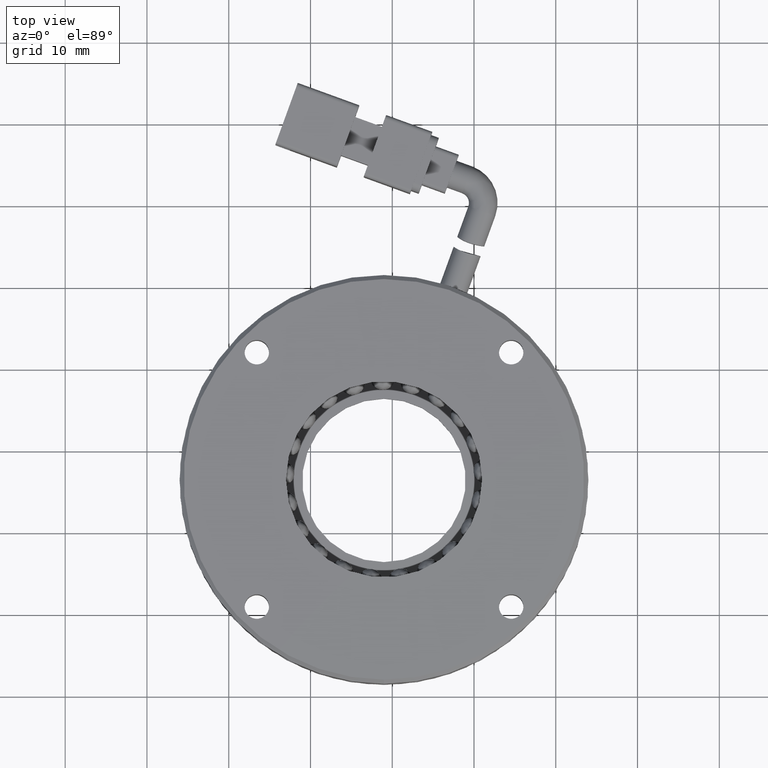
[diagram: clean part render]
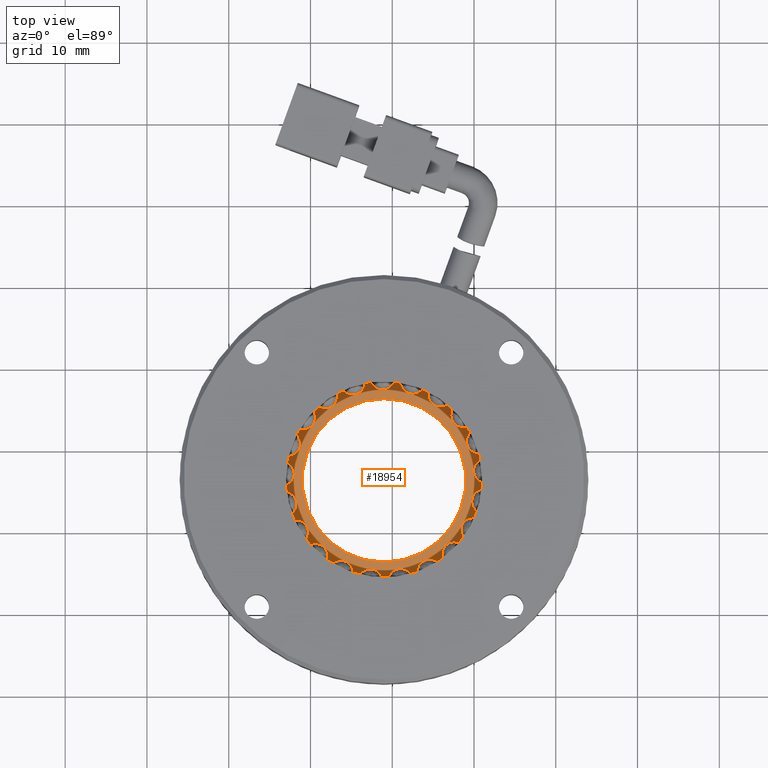
[diagram: same view with one face highlighted and labeled with its STEP entity id]
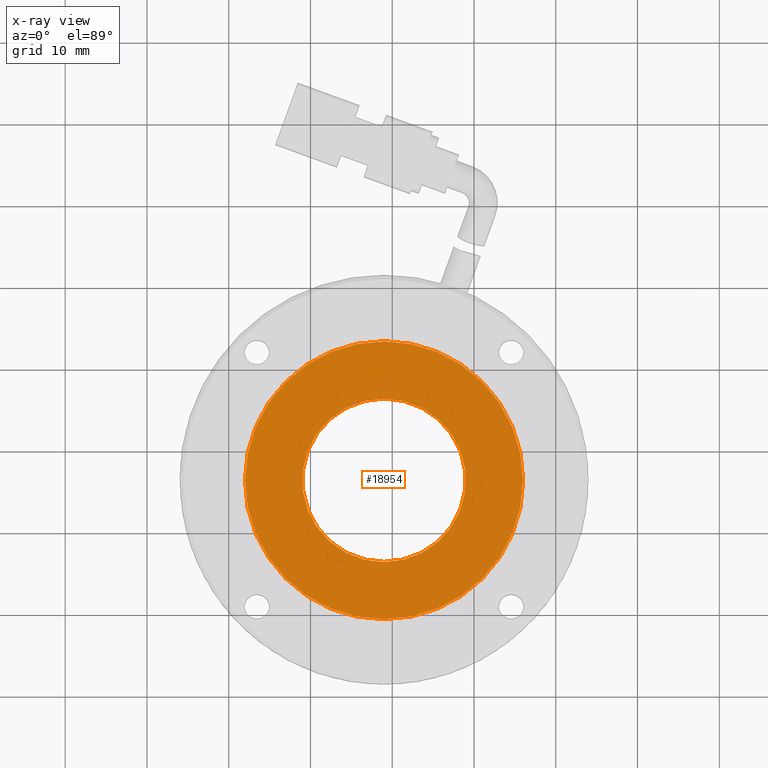
[diagram: x-ray of the same camera — body ghosted, the highlighted face saturated]
A machine part, top view. The second image highlights one B-rep face of the part: STEP entity #18954.
The next image is the same camera in x-ray: the body ghosted, the highlighted face saturated — about 0% of this face is hidden behind the body in this view.
In plain terms, the highlighted planar face has unit normal (-0, -0, -1).
Its self-contained STEP definition (entity closure, byte-faithful):
#968 = VERTEX_POINT ( 'NONE', #25221 ) ;
#1215 = FACE_BOUND ( 'NONE', #2160, .T. ) ;
#1675 = VERTEX_POINT ( 'NONE', #14541 ) ;
#1801 = VERTEX_POINT ( 'NONE', #25034 ) ;
#2160 = EDGE_LOOP ( 'NONE', ( #8732, #25264 ) ) ;
#2255 = EDGE_CURVE ( 'NONE', #5007, #1801, #4013, .T. ) ;
#3247 = EDGE_LOOP ( 'NONE', ( #10003, #19771 ) ) ;
#3366 = CARTESIAN_POINT ( 'NONE',  ( -121.0083944312394000, 6.460725025464729900, -3.499999999999940500 ) ) ;
#4013 = CIRCLE ( 'NONE', #13956, 10.00000000000000000 ) ;
#4231 = AXIS2_PLACEMENT_3D ( 'NONE', #3366, #17638, #5405 ) ;
#5007 = VERTEX_POINT ( 'NONE', #23747 ) ;
#5405 = DIRECTION ( 'NONE',  ( 0.0000000000000000000, -1.000000000000000000, 0.0000000000000000000 ) ) ;
#6024 = FACE_OUTER_BOUND ( 'NONE', #3247, .T. ) ;
#6337 = EDGE_CURVE ( 'NONE', #1675, #968, #17828, .T. ) ;
#6375 = EDGE_CURVE ( 'NONE', #1801, #5007, #22610, .T. ) ;
#6946 = AXIS2_PLACEMENT_3D ( 'NONE', #21829, #9599, #23853 ) ;
#8306 = AXIS2_PLACEMENT_3D ( 'NONE', #23035, #10826, #25060 ) ;
#8732 = ORIENTED_EDGE ( 'NONE', *, *, #6375, .T. ) ;
#9599 = DIRECTION ( 'NONE',  ( -1.278084676573917400E-047, 0.0000000000000000000, -1.000000000000000000 ) ) ;
#10003 = ORIENTED_EDGE ( 'NONE', *, *, #6337, .F. ) ;
#10291 = CARTESIAN_POINT ( 'NONE',  ( -121.0083944312394000, 6.460725025464729900, -3.499999999999940500 ) ) ;
#10826 = DIRECTION ( 'NONE',  ( -1.278084676573917700E-047, -7.983674700015282600E-110, -1.000000000000000000 ) ) ;
#12361 = DIRECTION ( 'NONE',  ( 0.0000000000000000000, -1.000000000000000000, 0.0000000000000000000 ) ) ;
#13751 = AXIS2_PLACEMENT_3D ( 'NONE', #10291, #24558, #12361 ) ;
#13777 = CIRCLE ( 'NONE', #13751, 17.00000000000000000 ) ;
#13956 = AXIS2_PLACEMENT_3D ( 'NONE', #23788, #23610, #23353 ) ;
#14541 = CARTESIAN_POINT ( 'NONE',  ( -121.0083944312394000, -10.53927497453527100, -3.499999999999940500 ) ) ;
#14848 = PLANE ( 'NONE',  #8306 ) ;
#17638 = DIRECTION ( 'NONE',  ( -1.278084676573917400E-047, 0.0000000000000000000, -1.000000000000000000 ) ) ;
#17828 = CIRCLE ( 'NONE', #4231, 17.00000000000000000 ) ;
#17834 = EDGE_CURVE ( 'NONE', #968, #1675, #13777, .T. ) ;
#18954 = ADVANCED_FACE ( 'NONE', ( #6024, #1215 ), #14848, .F. ) ;
#19771 = ORIENTED_EDGE ( 'NONE', *, *, #17834, .F. ) ;
#21829 = CARTESIAN_POINT ( 'NONE',  ( -121.0083944312394000, 6.460725025464729900, -3.499999999999940500 ) ) ;
#22610 = CIRCLE ( 'NONE', #6946, 10.00000000000000000 ) ;
#23035 = CARTESIAN_POINT ( 'NONE',  ( -121.0083944312394000, 6.460725025464729900, -3.499999999999940500 ) ) ;
#23353 = DIRECTION ( 'NONE',  ( 0.0000000000000000000, -1.000000000000000000, 0.0000000000000000000 ) ) ;
#23610 = DIRECTION ( 'NONE',  ( -1.278084676573917400E-047, 0.0000000000000000000, -1.000000000000000000 ) ) ;
#23747 = CARTESIAN_POINT ( 'NONE',  ( -121.0083944312394000, 16.46072502546472900, -3.499999999999940500 ) ) ;
#23788 = CARTESIAN_POINT ( 'NONE',  ( -121.0083944312394000, 6.460725025464729900, -3.499999999999940500 ) ) ;
#23853 = DIRECTION ( 'NONE',  ( 0.0000000000000000000, -1.000000000000000000, 0.0000000000000000000 ) ) ;
#24558 = DIRECTION ( 'NONE',  ( -1.278084676573917400E-047, 0.0000000000000000000, -1.000000000000000000 ) ) ;
#25034 = CARTESIAN_POINT ( 'NONE',  ( -121.0083944312394000, -3.539274974535270500, -3.499999999999940500 ) ) ;
#25060 = DIRECTION ( 'NONE',  ( -1.278084676573917700E-047, 1.000000000000000000, 1.633500440493055000E-094 ) ) ;
#25221 = CARTESIAN_POINT ( 'NONE',  ( -121.0083944312394000, 23.46072502546472900, -3.499999999999940500 ) ) ;
#25264 = ORIENTED_EDGE ( 'NONE', *, *, #2255, .T. ) ;